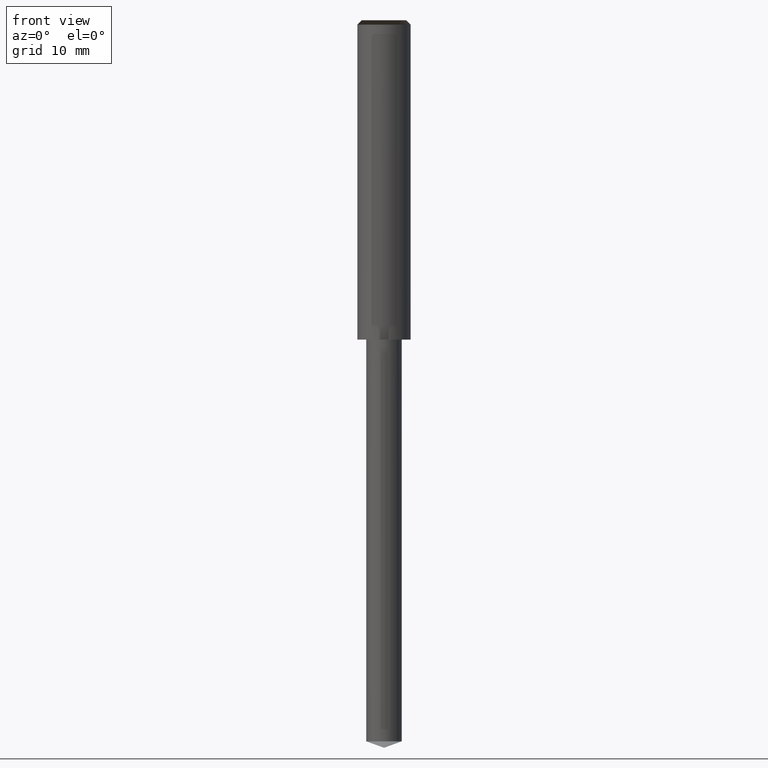
[diagram: clean part render]
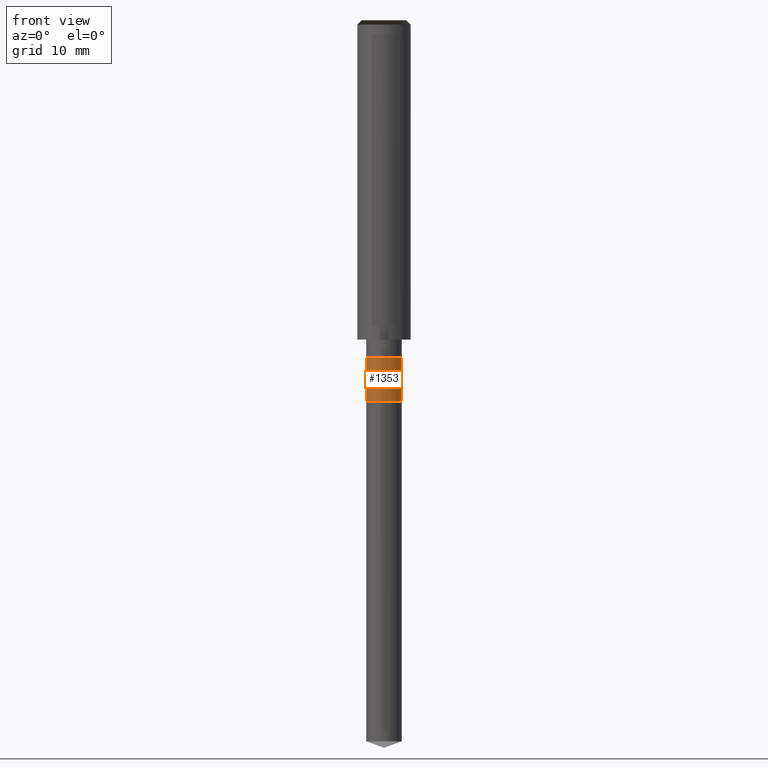
[diagram: same view with one face highlighted and labeled with its STEP entity id]
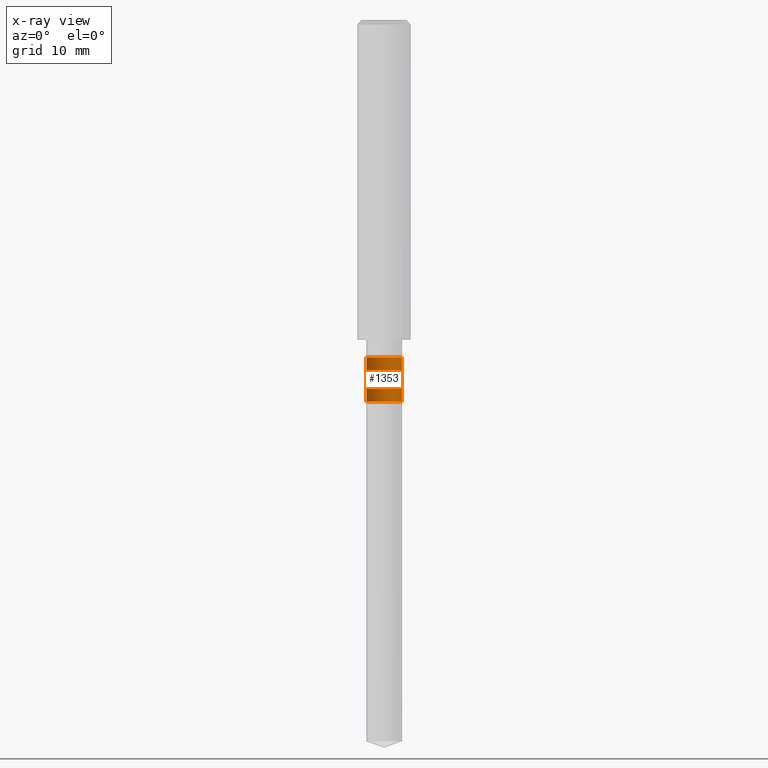
[diagram: x-ray of the same camera — body ghosted, the highlighted face saturated]
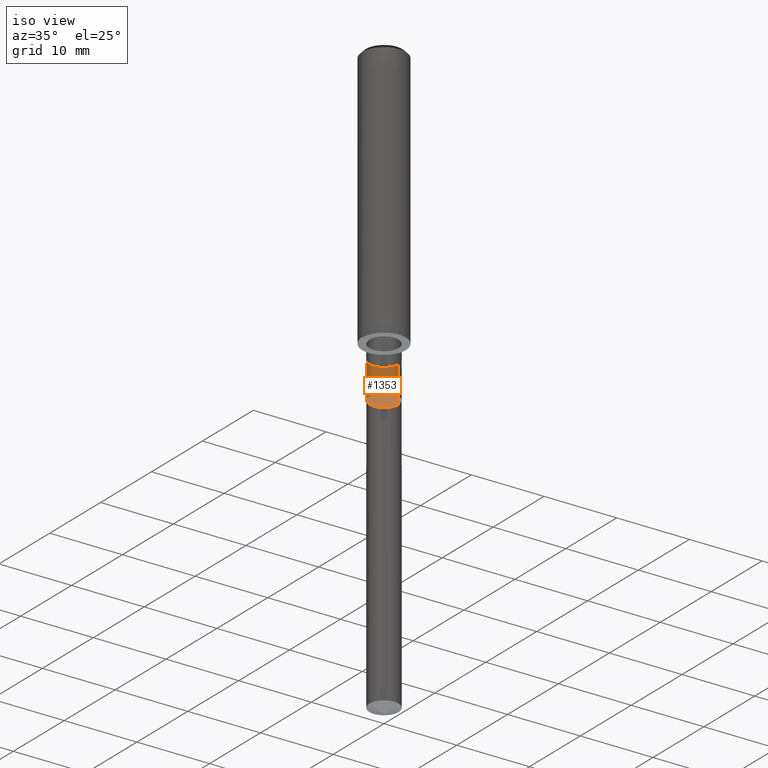
[diagram: same view with one face highlighted and labeled with its STEP entity id]
A machine part, front view. The second image highlights one B-rep face of the part: STEP entity #1353.
The next image is the same camera in x-ray: the body ghosted, the highlighted face saturated — about 0% of this face is hidden behind the body in this view.
A second angle (iso view) of the same face is appended — the face is thin or edge-on in the first view.
In plain terms, the highlighted face is a freeform B-spline surface patch.
Its self-contained STEP definition (entity closure, byte-faithful):
#1020=CARTESIAN_POINT('',(2.0,0.0,-7.0));
#1024=CARTESIAN_POINT('',(-2.0,0.0,-7.0));
#1029=CARTESIAN_POINT('',(-2.0,-2.0,-7.0));
#1030=CARTESIAN_POINT('',(0.0,-2.0,-7.0));
#1031=CARTESIAN_POINT('',(2.0,-2.0,-7.0));
#1032=CARTESIAN_POINT('',(2.0,0.0,-2.0));
#1036=CARTESIAN_POINT('',(-2.0,0.0,-2.0));
#1058=CARTESIAN_POINT('',(-2.0,-2.0,-2.0));
#1059=CARTESIAN_POINT('',(0.0,-2.0,-2.0));
#1060=CARTESIAN_POINT('',(2.0,-2.0,-2.0));
#1334=(
BOUNDED_SURFACE()
B_SPLINE_SURFACE(1,2,(
(#1024,#1029,#1030,#1031,#1020),
(#1036,#1058,#1059,#1060,#1032)
), .UNSPECIFIED.,.F.,.F.,.F.)
B_SPLINE_SURFACE_WITH_KNOTS((2,2),(3,2,3),(
0.0,1.0),(
0.0,0.5,1.0), .UNSPECIFIED.)
GEOMETRIC_REPRESENTATION_ITEM()
RATIONAL_B_SPLINE_SURFACE(((1.0,0.707106781187,1.0,0.707106781187,1.0),
(1.0,0.707106781187,1.0,0.707106781187,1.0)
))
REPRESENTATION_ITEM('')
SURFACE()
);
#1335=(
BOUNDED_CURVE()
B_SPLINE_CURVE(2,(#1020,#1031,#1030,#1029,#1024),.UNSPECIFIED.,.F.,.F.)
B_SPLINE_CURVE_WITH_KNOTS((3,2,3),
(0.0,0.5,1.0),.UNSPECIFIED.)
CURVE()
GEOMETRIC_REPRESENTATION_ITEM()
RATIONAL_B_SPLINE_CURVE((1.0,0.707106781187,1.0,0.707106781187,1.0))
REPRESENTATION_ITEM('')
);
#1336=(
BOUNDED_CURVE()
B_SPLINE_CURVE(1,(#1024,#1036),.UNSPECIFIED.,.F.,.F.)
B_SPLINE_CURVE_WITH_KNOTS((2,2),
(0.0,1.0),.UNSPECIFIED.)
CURVE()
GEOMETRIC_REPRESENTATION_ITEM()
RATIONAL_B_SPLINE_CURVE((1.0,1.0))
REPRESENTATION_ITEM('')
);
#1337=(
BOUNDED_CURVE()
B_SPLINE_CURVE(2,(#1036,#1058,#1059,#1060,#1032),.UNSPECIFIED.,.F.,.F.)
B_SPLINE_CURVE_WITH_KNOTS((3,2,3),
(0.0,0.5,1.0),.UNSPECIFIED.)
CURVE()
GEOMETRIC_REPRESENTATION_ITEM()
RATIONAL_B_SPLINE_CURVE((1.0,0.707106781187,1.0,0.707106781187,1.0))
REPRESENTATION_ITEM('')
);
#1338=(
BOUNDED_CURVE()
B_SPLINE_CURVE(1,(#1032,#1020),.UNSPECIFIED.,.F.,.F.)
B_SPLINE_CURVE_WITH_KNOTS((2,2),
(0.0,1.0),.UNSPECIFIED.)
CURVE()
GEOMETRIC_REPRESENTATION_ITEM()
RATIONAL_B_SPLINE_CURVE((1.0,1.0))
REPRESENTATION_ITEM('')
);
#1339=VERTEX_POINT('',#1020);
#1340=VERTEX_POINT('',#1024);
#1341=VERTEX_POINT('',#1032);
#1342=VERTEX_POINT('',#1036);
#1343=EDGE_CURVE('',#1339,#1340,#1335,.T.);
#1344=EDGE_CURVE('',#1340,#1342,#1336,.T.);
#1345=EDGE_CURVE('',#1342,#1341,#1337,.T.);
#1346=EDGE_CURVE('',#1341,#1339,#1338,.T.);
#1347=ORIENTED_EDGE('',*,*,#1343,.T.);
#1348=ORIENTED_EDGE('',*,*,#1344,.T.);
#1349=ORIENTED_EDGE('',*,*,#1345,.T.);
#1350=ORIENTED_EDGE('',*,*,#1346,.T.);
#1351=EDGE_LOOP('',(#1347,#1348,#1349,#1350));
#1352=FACE_OUTER_BOUND('',#1351,.T.);
#1353=ADVANCED_FACE('',(#1352),#1334,.T.);